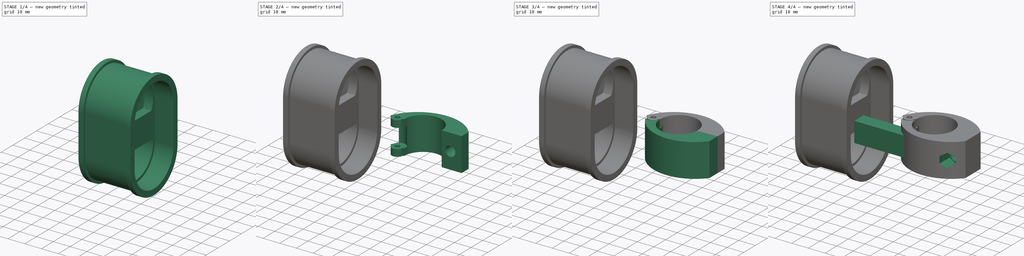
[diagram: build sequence overview — one tinted view per stage of 4, left to right]
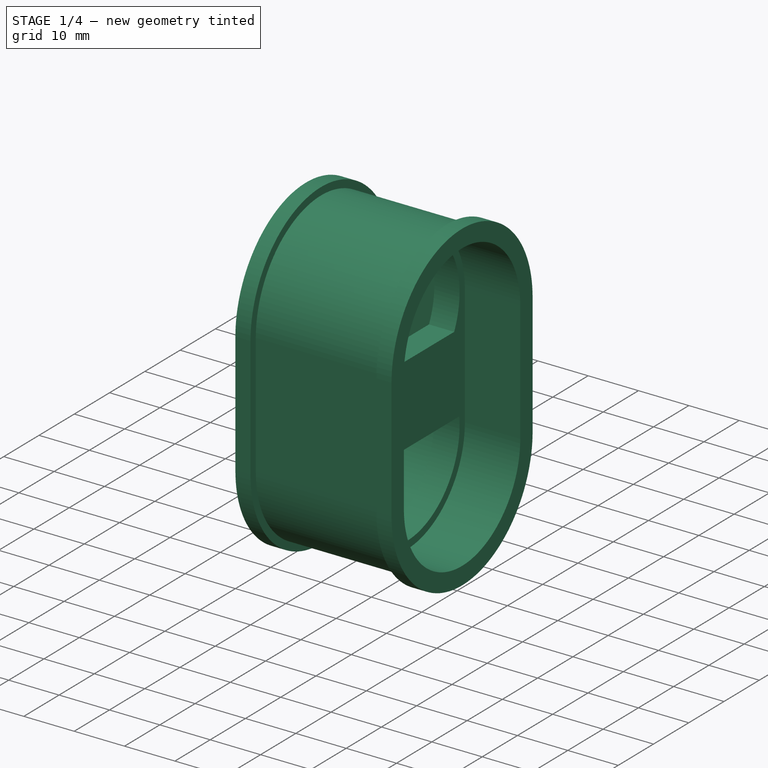
[diagram: stage 1 of 4 — iso view after this stage's code; geometry added in this stage tinted green]
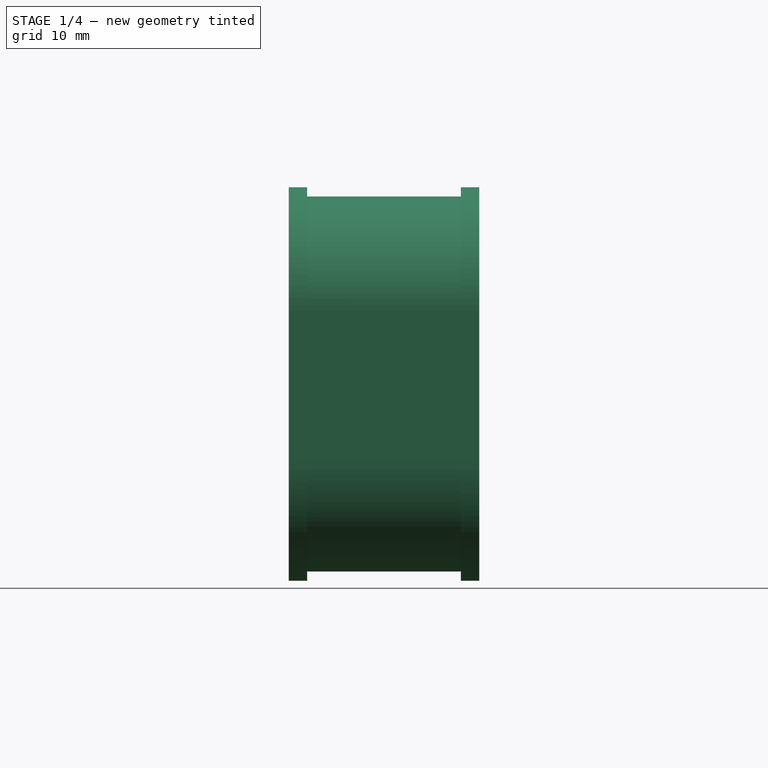
[diagram: stage 1 of 4 — front view after this stage's code; geometry added in this stage tinted green]
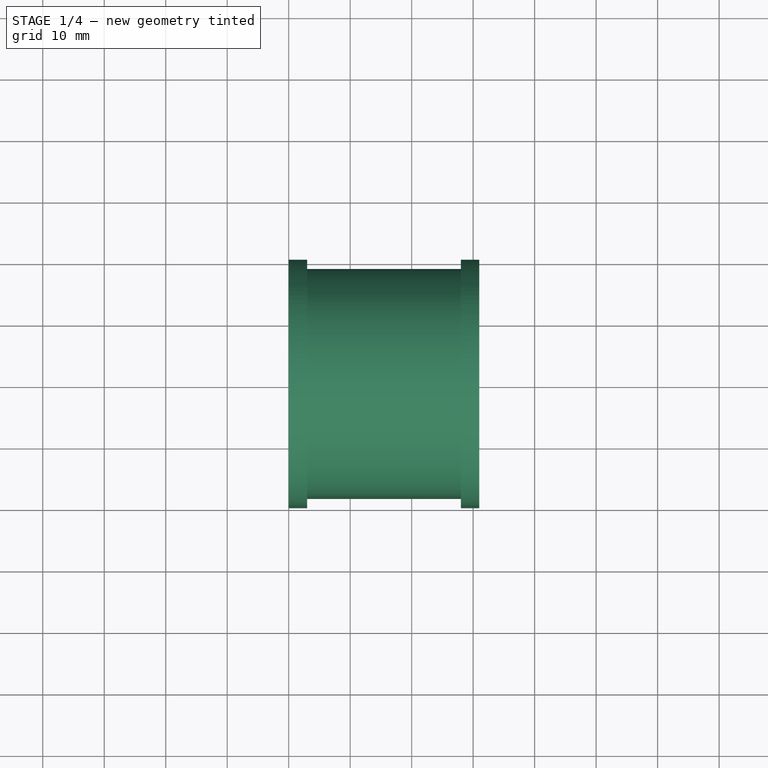
[diagram: stage 1 of 4 — top view after this stage's code; geometry added in this stage tinted green]
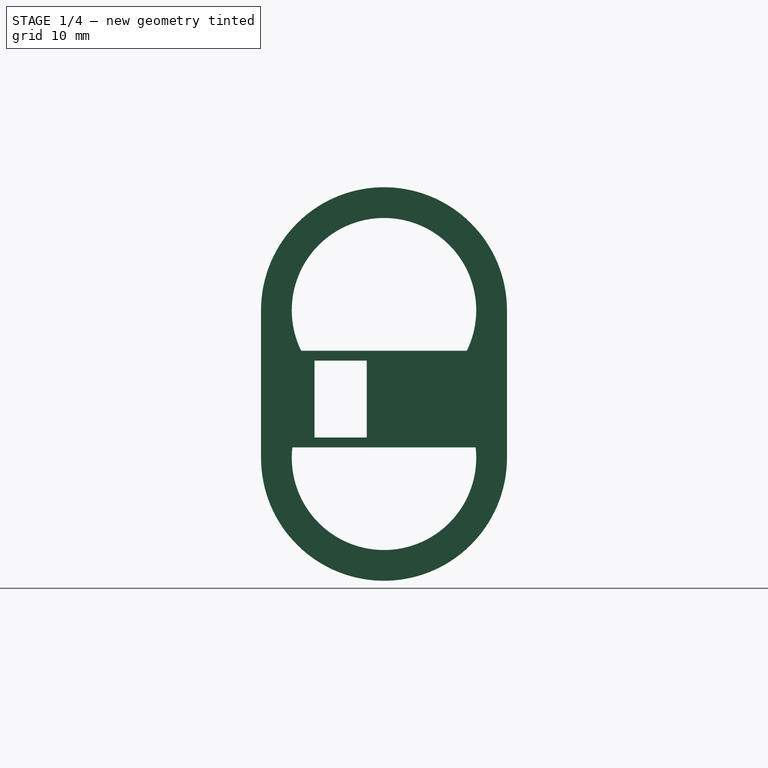
[diagram: stage 1 of 4 — right view after this stage's code; geometry added in this stage tinted green]
FCSTD DOCUMENT  (FreeCAD 0.21Rpre_29277.fc34 (Git))
Label: watch-mount-v2
License: All rights reserved
LicenseURL: http://en.wikipedia.org/wiki/All_rights_reserved
objects: Sketcher::SketchObject×14, PartDesign::Pad×7, PartDesign::Pocket×7, PartDesign::Body×3
note: 45 computed .brp shape members not serialized (recipe doc carries the construction recipe); baked Part::Feature solids carry a one-line shape summary decoded from their .brp

FEATURE [PartDesign::Body] Body001  label="felso-foglalat"
  Group = -> [Sketch006,Pad002,Sketch007,Pocket004,Sketch008,Pocket005,Sketch009,Pocket006]
  Origin = -> Origin001
  Tip = -> Pocket006
FEATURE [Sketcher::SketchObject] Sketch010
  AttachmentOffset = pos=(0,0,-70) rot=(0,0,1;0rad)
  FullyConstrained = true
  MapMode = 5
  Placement = pos=(-70,1.55e-14,-1.55e-14) rot=(0.57735,0.57735,0.57735;2.0944rad)
  Support = -> [YZ_Plane002]
  sketch-geometry (8):
    g0: ArcOfCircle CenterX=0 CenterY=-10 CenterZ=0 NormalX=0 NormalY=0 NormalZ=1 AngleXU=0 Radius=20 StartAngle=3.14159 EndAngle=6.28319
    g1: ArcOfCircle CenterX=0 CenterY=14 CenterZ=0 NormalX=0 NormalY=0 NormalZ=1 AngleXU=0 Radius=20 StartAngle=0 EndAngle=3.14159
    g2: LineSegment StartX=20 StartY=-10 StartZ=0 EndX=20 EndY=14 EndZ=0
    g3: LineSegment StartX=-20 StartY=14 StartZ=0 EndX=-20 EndY=-10 EndZ=0
    g4: ArcOfCircle CenterX=0 CenterY=-10 CenterZ=0 NormalX=0 NormalY=0 NormalZ=1 AngleXU=0 Radius=16.5 StartAngle=3.14159 EndAngle=6.28319
    g5: ArcOfCircle CenterX=0 CenterY=14 CenterZ=0 NormalX=0 NormalY=0 NormalZ=1 AngleXU=0 Radius=16.5 StartAngle=3.875e-13 EndAngle=3.14159
    g6: LineSegment StartX=16.5 StartY=-10 StartZ=0 EndX=16.5 EndY=14 EndZ=0
    g7: LineSegment StartX=-16.5 StartY=14 StartZ=0 EndX=-16.5 EndY=-10 EndZ=0
  constraints (18):
    c: Tangent(g0,g2) = -1.5708
    c: Tangent(g2,g1) = -1.5708
    c: Tangent(g1,g3) = -1.5708
    c: Tangent(g3,g0) = -1.5708
    c: Equal(g0,g1)
    c: Radius(g1) = 20
    c: DistanceX(g1) = 0
    c: Tangent(g4,g6) = -1.5708
    c: Tangent(g6,g5) = -1.5708
    c: Tangent(g5,g7) = -1.5708
    c: Tangent(g7,g4) = -1.5708
    c: Equal(g4,g5)
    c: Coincident(g4,g0)
    c: Coincident(g5,g1)
    c: Radius(g5) = 16.5
    c: DistanceY(g1) = 14
    c: DistanceX(g0) = 0
    c: DistanceY(g0) = -10
FEATURE [PartDesign::Pad] Pad003  label="bal-keret"
  Direction = (1,-2e-16,3e-16)
  Length = 3
  Length2 = 10
  Placement = pos=(0,0,0) rot=(0.57735,0.57735,0.57735;2.0944rad)
  Profile = -> Sketch010
  ReferenceAxis = -> Sketch010 [N_Axis]
  Type = 0
FEATURE [Sketcher::SketchObject] Sketch011
  AttachmentOffset = pos=(0,0,-67) rot=(0,0,1;0rad)
  FullyConstrained = true
  MapMode = 5
  Placement = pos=(-67,1.49e-14,-1.49e-14) rot=(0.57735,0.57735,0.57735;2.0944rad)
  Support = -> [YZ_Plane002]
  sketch-geometry (8):
    g0: ArcOfCircle CenterX=0 CenterY=-10 CenterZ=0 NormalX=0 NormalY=0 NormalZ=1 AngleXU=0 Radius=16.5 StartAngle=3.14159 EndAngle=6.28319
    g1: ArcOfCircle CenterX=0 CenterY=14 CenterZ=0 NormalX=0 NormalY=0 NormalZ=1 AngleXU=0 Radius=16.5 StartAngle=-6.2e-15 EndAngle=3.14159
    g2: LineSegment StartX=16.5 StartY=-10 StartZ=0 EndX=16.5 EndY=14 EndZ=0
    g3: LineSegment StartX=-16.5 StartY=14 StartZ=0 EndX=-16.5 EndY=-10 EndZ=0
    g4: ArcOfCircle CenterX=0 CenterY=-10 CenterZ=0 NormalX=0 NormalY=0 NormalZ=1 AngleXU=0 Radius=18.5 StartAngle=3.14159 EndAngle=6.28319
    g5: ArcOfCircle CenterX=0 CenterY=14 CenterZ=0 NormalX=0 NormalY=0 NormalZ=1 AngleXU=0 Radius=18.5 StartAngle=0 EndAngle=3.14159
    g6: LineSegment StartX=18.5 StartY=-10 StartZ=0 EndX=18.5 EndY=14 EndZ=0
    g7: LineSegment StartX=-18.5 StartY=14 StartZ=0 EndX=-18.5 EndY=-10 EndZ=0
  constraints (18):
    c: Tangent(g0,g2) = -1.5708
    c: Tangent(g2,g1) = -1.5708
    c: Tangent(g1,g3) = -1.5708
    c: Tangent(g3,g0) = -1.5708
    c: Equal(g0,g1)
    c: Radius(g1) = 16.5
    c: Tangent(g4,g6) = -1.5708
    c: Tangent(g6,g5) = -1.5708
    c: Tangent(g5,g7) = -1.5708
    c: Tangent(g7,g4) = -1.5708
    c: Equal(g4,g5)
    c: Coincident(g4,g0)
    c: Coincident(g5,g1)
    c: Radius(g5) = 18.5
    c: DistanceX(g1) = 0
    c: DistanceY(g1) = 14
    c: DistanceX(g0) = 0
    c: DistanceY(g0) = -10
FEATURE [PartDesign::Pad] Pad004  label="tarto-test"
  BaseFeature = -> Pad003
  Direction = (1,-2e-16,3e-16)
  Length = 25
  Length2 = 10
  Placement = pos=(0,0,0) rot=(0.57735,0.57735,0.57735;2.0944rad)
  Profile = -> Sketch011
  ReferenceAxis = -> Sketch011 [N_Axis]
  Type = 0
FEATURE [Sketcher::SketchObject] Sketch012
  AttachmentOffset = pos=(0,0,-42) rot=(0,0,1;0rad)
  FullyConstrained = true
  MapMode = 5
  Placement = pos=(-42,9.3e-15,-9.3e-15) rot=(0.57735,0.57735,0.57735;2.0944rad)
  Support = -> [YZ_Plane002]
  sketch-geometry (8):
    g0: ArcOfCircle CenterX=0 CenterY=-10 CenterZ=0 NormalX=0 NormalY=0 NormalZ=1 AngleXU=0 Radius=20 StartAngle=3.14159 EndAngle=6.28319
    g1: ArcOfCircle CenterX=0 CenterY=14 CenterZ=0 NormalX=0 NormalY=0 NormalZ=1 AngleXU=0 Radius=20 StartAngle=0 EndAngle=3.14159
    g2: LineSegment StartX=20 StartY=-10 StartZ=0 EndX=20 EndY=14 EndZ=0
    g3: LineSegment StartX=-20 StartY=14 StartZ=0 EndX=-20 EndY=-10 EndZ=0
    g4: ArcOfCircle CenterX=0 CenterY=-10 CenterZ=0 NormalX=0 NormalY=0 NormalZ=1 AngleXU=0 Radius=16.5 StartAngle=3.14159 EndAngle=6.28319
    g5: ArcOfCircle CenterX=0 CenterY=14 CenterZ=0 NormalX=0 NormalY=0 NormalZ=1 AngleXU=0 Radius=16.5 StartAngle=1e-16 EndAngle=3.14159
    g6: LineSegment StartX=16.5 StartY=-10 StartZ=0 EndX=16.5 EndY=14 EndZ=0
    g7: LineSegment StartX=-16.5 StartY=14 StartZ=0 EndX=-16.5 EndY=-10 EndZ=0
  constraints (18):
    c: Tangent(g0,g2) = -1.5708
    c: Tangent(g2,g1) = -1.5708
    c: Tangent(g1,g3) = -1.5708
    c: Tangent(g3,g0) = -1.5708
    c: Equal(g0,g1)
    c: Radius(g1) = 20
    c: DistanceX(g1) = 0
    c: Tangent(g4,g6) = -1.5708
    c: Tangent(g6,g5) = -1.5708
    c: Tangent(g5,g7) = -1.5708
    c: Tangent(g7,g4) = -1.5708
    c: Equal(g4,g5)
    c: Coincident(g4,g0)
    c: Coincident(g5,g1)
    c: Radius(g5) = 16.5
    c: DistanceY(g1) = 14
    c: DistanceX(g0) = 0
    c: DistanceY(g0) = -10
FEATURE [PartDesign::Pad] Pad005  label="jobb-keret"
  BaseFeature = -> Pad004
  Direction = (1,-2e-16,3e-16)
  Length = 3
  Length2 = 10
  Placement = pos=(0,0,0) rot=(0.57735,0.57735,0.57735;2.0944rad)
  Profile = -> Sketch012
  ReferenceAxis = -> Sketch012 [N_Axis]
  Type = 0
FEATURE [Sketcher::SketchObject] Sketch013
  AttachmentOffset = pos=(0,0,-50) rot=(0,0,1;0rad)
  FullyConstrained = true
  MapMode = 5
  Placement = pos=(-50,1.11e-14,-1.11e-14) rot=(0.57735,0.57735,0.57735;2.0944rad)
  Support = -> [YZ_Plane002]
  sketch-geometry (12):
    g0: ArcOfCircle CenterX=0 CenterY=-10 CenterZ=0 NormalX=0 NormalY=0 NormalZ=1 AngleXU=0 Radius=16.5 StartAngle=3.14159 EndAngle=6.28319
    g1: ArcOfCircle CenterX=0 CenterY=14 CenterZ=0 NormalX=0 NormalY=0 NormalZ=1 AngleXU=0 Radius=16.5 StartAngle=-6.2e-15 EndAngle=3.14159
    g2: LineSegment StartX=16.5 StartY=-10 StartZ=0 EndX=16.5 EndY=14 EndZ=0
    g3: LineSegment StartX=-16.5 StartY=14 StartZ=0 EndX=-16.5 EndY=-10 EndZ=0
    g4: LineSegment StartX=-11.3 StartY=5.8 StartZ=0 EndX=-2.8 EndY=5.8 EndZ=0
    g5: LineSegment StartX=-2.8 StartY=5.8 StartZ=0 EndX=-2.8 EndY=-6.7 EndZ=0
    g6: LineSegment StartX=-2.8 StartY=-6.7 StartZ=0 EndX=-11.3 EndY=-6.7 EndZ=0
    g7: LineSegment StartX=-11.3 StartY=-6.7 StartZ=0 EndX=-11.3 EndY=5.8 EndZ=0
    g8: LineSegment StartX=-14.9045 StartY=-8.31046 StartZ=0 EndX=14.9045 EndY=-8.31046 EndZ=0
    g9: ArcOfCircle CenterX=0 CenterY=-10 CenterZ=0 NormalX=0 NormalY=0 NormalZ=1 AngleXU=0 Radius=15 StartAngle=3.02872 EndAngle=6.39606
    g10: ArcOfCircle CenterX=0 CenterY=14 CenterZ=0 NormalX=0 NormalY=0 NormalZ=1 AngleXU=0 Radius=15 StartAngle=5.82879 EndAngle=9.87917
    g11: LineSegment StartX=-13.4779 StartY=7.41623 StartZ=0 EndX=13.4779 EndY=7.41623 EndZ=0
  constraints (34):
    c: Tangent(g0,g2) = -1.5708
    c: Tangent(g2,g1) = -1.5708
    c: Tangent(g1,g3) = -1.5708
    c: Tangent(g3,g0) = -1.5708
    c: Equal(g0,g1)
    c: Radius(g1) = 16.5
    c: DistanceX(g0) = 0
    c: DistanceY(g0) = -10
    c: DistanceX(g1) = 0
    c: DistanceY(g1) = 14
    c: Coincident(g4,g5)
    c: Coincident(g5,g6)
    c: Coincident(g6,g7)
    c: Coincident(g7,g4)
    c: Horizontal(g4)
    c: Horizontal(g6)
    c: Vertical(g5)
    c: Vertical(g7)
    c: DistanceX(g4) = -2.8
    c: DistanceY(g4) = 5.8
    c: DistanceX(g4,g4) = 8.5
    c: DistanceY(g7,g7) = 12.5
    c: Horizontal(g8)
    c: Coincident(g9,g8)
    c: Coincident(g9,g8)
    c: DistanceY(g8) = -8.31047
    c: Coincident(g0,g9)
    c: Coincident(g10,g1)
    c: Radius(g10) = 15
    c: Horizontal(g11)
    c: Coincident(g10,g11)
    c: Coincident(g10,g11)
    c: Radius(g9) = 15
    c: DistanceX(g10) = -13.4779
FEATURE [PartDesign::Pad] Pad006  label="merevito"
  BaseFeature = -> Pad005
  Direction = (1,-2e-16,3e-16)
  Length = 5
  Length2 = 10
  Placement = pos=(0,0,0) rot=(0.57735,0.57735,0.57735;2.0944rad)
  Profile = -> Sketch013
  ReferenceAxis = -> Sketch013 [N_Axis]
  Reversed = true
  Type = 0
FEATURE [PartDesign::Body] Body002  label="ora-tarto"
  Group = -> [Sketch010,Pad003,Sketch011,Pad004,Sketch012,Pad005,Sketch013,Pad006]
  Origin = -> Origin002
  Placement = pos=(-10,0,0) rot=(0,0,1;0rad)
  Tip = -> Pad006
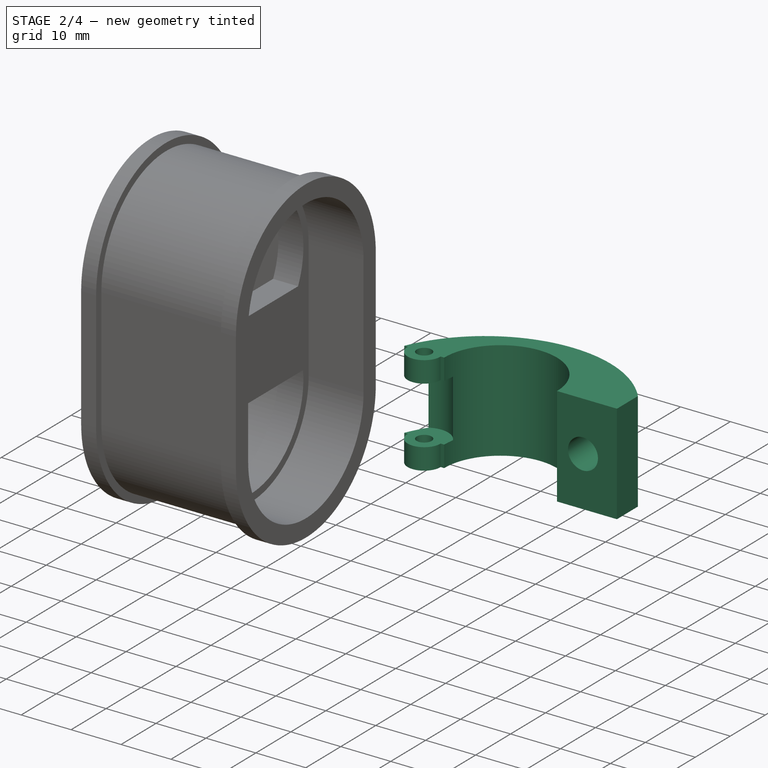
[diagram: stage 2 of 4 — iso view after this stage's code; geometry added in this stage tinted green]
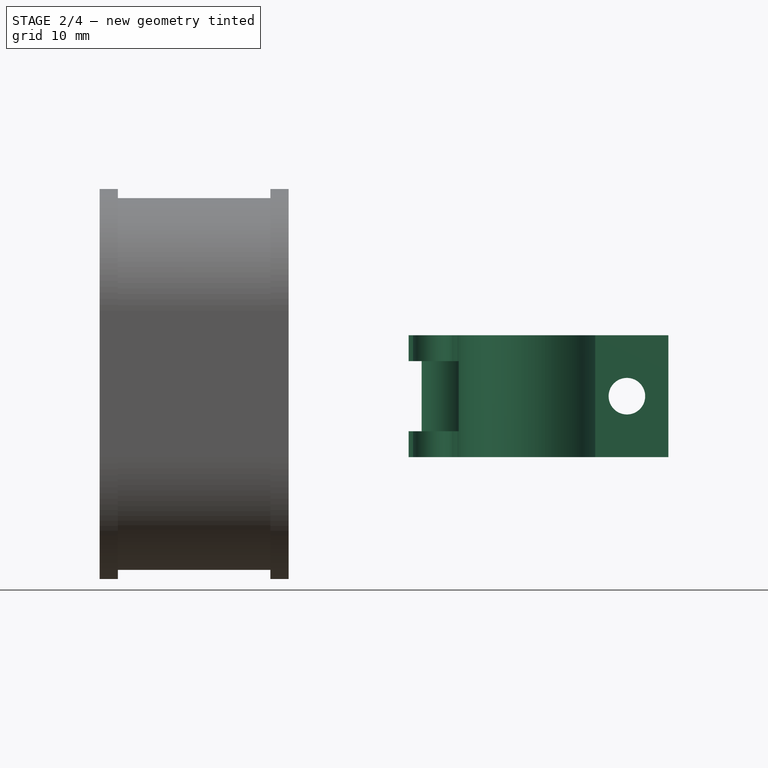
[diagram: stage 2 of 4 — front view after this stage's code; geometry added in this stage tinted green]
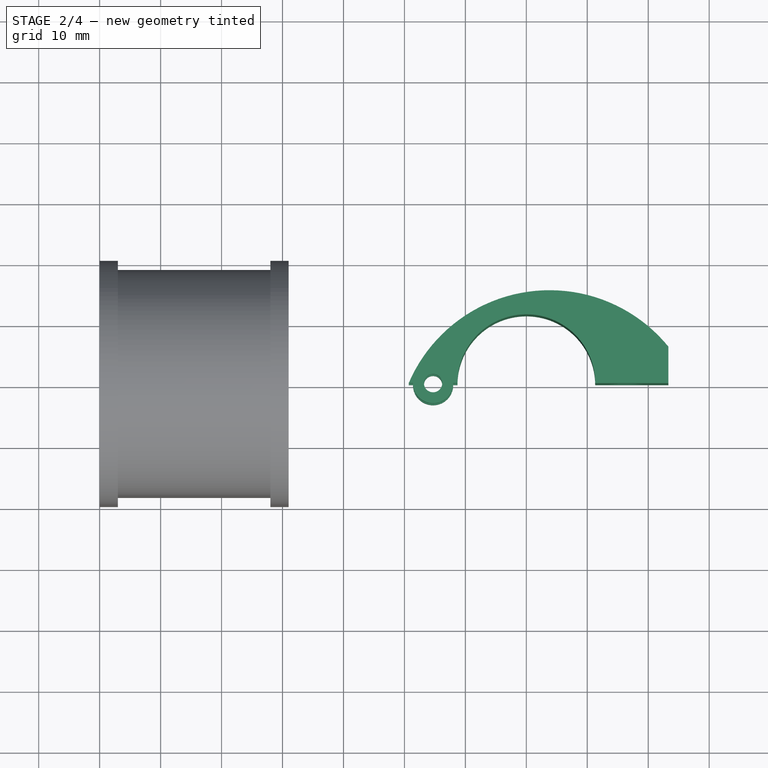
[diagram: stage 2 of 4 — top view after this stage's code; geometry added in this stage tinted green]
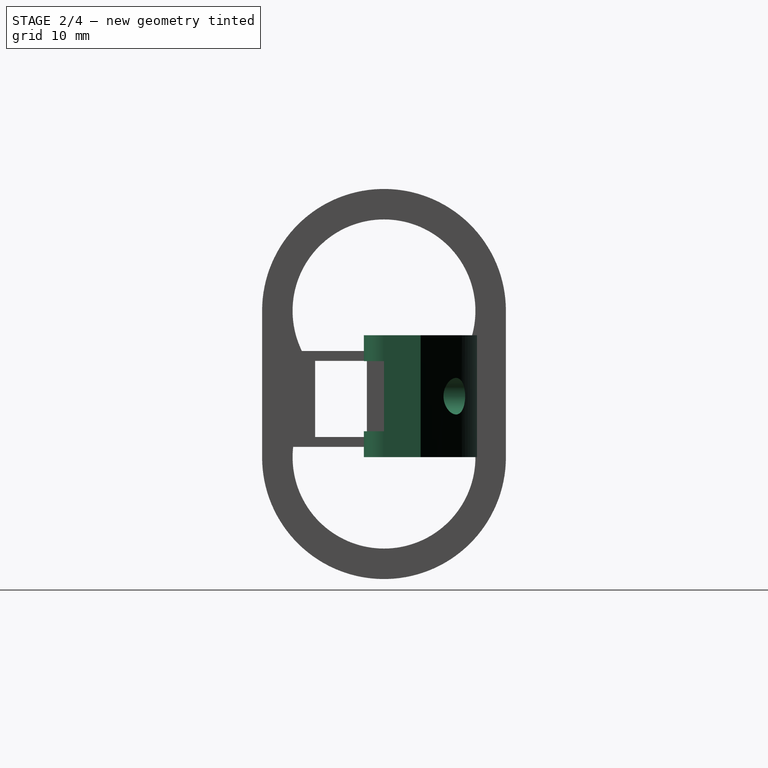
[diagram: stage 2 of 4 — right view after this stage's code; geometry added in this stage tinted green]
FEATURE [PartDesign::Body] Body  label="also-foglalat"
  Group = -> [Sketch,Pad,Sketch001,Pocket,Sketch002,Pocket001,Sketch003,Pocket002,Sketch004,Pocket003,Sketch005,Pad001]
  Origin = -> Origin
  Tip = -> Pad001
FEATURE [Sketcher::SketchObject] Sketch006
  FullyConstrained = true
  MapMode = 5
  Support = -> [XY_Plane001]
  sketch-geometry (8):
    g0: ArcOfCircle CenterX=0 CenterY=0 CenterZ=0 NormalX=0 NormalY=0 NormalZ=1 AngleXU=0 Radius=11.3 StartAngle=0 EndAngle=3.14159
    g1: LineSegment StartX=-11.3 StartY=1.4e-15 StartZ=0 EndX=-12 EndY=-8e-16 EndZ=0
    g2: ArcOfCircle CenterX=-15.3 CenterY=0 CenterZ=0 NormalX=0 NormalY=0 NormalZ=1 AngleXU=0 Radius=3.3 StartAngle=3.14159 EndAngle=6.28319
    g3: LineSegment StartX=-18.6 StartY=4e-16 StartZ=0 EndX=-19.3 EndY=1.24e-14 EndZ=0
    g4: Circle CenterX=-15.3 CenterY=0 CenterZ=0 NormalX=0 NormalY=0 NormalZ=1 AngleXU=0 Radius=1.5
    g5: LineSegment StartX=11.3 StartY=0 StartZ=0 EndX=23.3 EndY=0 EndZ=0
    g6: LineSegment StartX=23.3 StartY=0 StartZ=0 EndX=23.3 EndY=6 EndZ=0
    g7: ArcOfCircle CenterX=3.81551 CenterY=-9.89015 CenterZ=0 NormalX=0 NormalY=0 NormalZ=1 AngleXU=0 Radius=25.1424 StartAngle=0.684138 EndAngle=2.7373
  constraints (25):
    c: Coincident(g0,g-1)
    c: PointOnObject(g0,g-1)
    c: PointOnObject(g0,g-1)
    c: Radius(g0) = 11.3
    c: Coincident(g1,g0)
    c: PointOnObject(g1,g-1)
    c: DistanceX(g1,g1) = 0.7
    c: PointOnObject(g2,g-1)
    c: Coincident(g2,g1)
    c: PointOnObject(g2,g-1)
    c: Radius(g2) = 3.3
    c: Coincident(g3,g2)
    c: PointOnObject(g3,g-1)
    c: DistanceX(g3,g3) = 0.7
    c: Coincident(g4,g2)
    c: Radius(g4) = 1.5
    c: Coincident(g5,g6)
    c: Horizontal(g5)
    c: Vertical(g6)
    c: Coincident(g5,g0)
    c: DistanceX(g5,g5) = 12
    c: Coincident(g7,g3)
    c: Coincident(g7,g6)
    c: DistanceY(g6,g6) = 6
    c: DistanceX(g7) = 3.81551
FEATURE [PartDesign::Pad] Pad002  label="fels-foglalat-test"
  Direction = (0,0,1)
  Length = 20
  Length2 = 10
  Midplane = true
  Profile = -> Sketch006
  ReferenceAxis = -> Sketch006 [N_Axis]
  Type = 0
FEATURE [Sketcher::SketchObject] Sketch007
  FullyConstrained = true
  MapMode = 5
  Support = -> [XY_Plane001]
  sketch-geometry (1):
    g0: Circle CenterX=-15 CenterY=0 CenterZ=0 NormalX=0 NormalY=0 NormalZ=1 AngleXU=0 Radius=4.5
  constraints (3):
    c: Radius(g0) = 4.5
    c: DistanceX(g0) = -15
    c: DistanceY(g0) = 0
FEATURE [PartDesign::Pocket] Pocket004  label="zsaner-kivagas"
  BaseFeature = -> Pad002
  Direction = (0,0,-1)
  Length = 11.5
  Length2 = 5
  Midplane = true
  Profile = -> Sketch007
  ReferenceAxis = -> Sketch007 [N_Axis]
  Type = 0
FEATURE [Sketcher::SketchObject] Sketch008
  FullyConstrained = true
  MapMode = 5
  Placement = pos=(0,0,0) rot=(1,0,0;1.5708rad)
  Support = -> [XZ_Plane001]
  sketch-geometry (1):
    g0: Circle CenterX=16.5 CenterY=0 CenterZ=0 NormalX=0 NormalY=0 NormalZ=1 AngleXU=0 Radius=3
  constraints (3):
    c: PointOnObject(g0,g-1)
    c: DistanceX(g0) = 16.5
    c: Radius(g0) = 3
FEATURE [PartDesign::Pocket] Pocket005  label="felso-rogz-csav-furat"
  BaseFeature = -> Pocket004
  Direction = (0,1,2e-16)
  Length = 15
  Length2 = 5
  Profile = -> Sketch008
  ReferenceAxis = -> Sketch008 [N_Axis]
  Type = 0
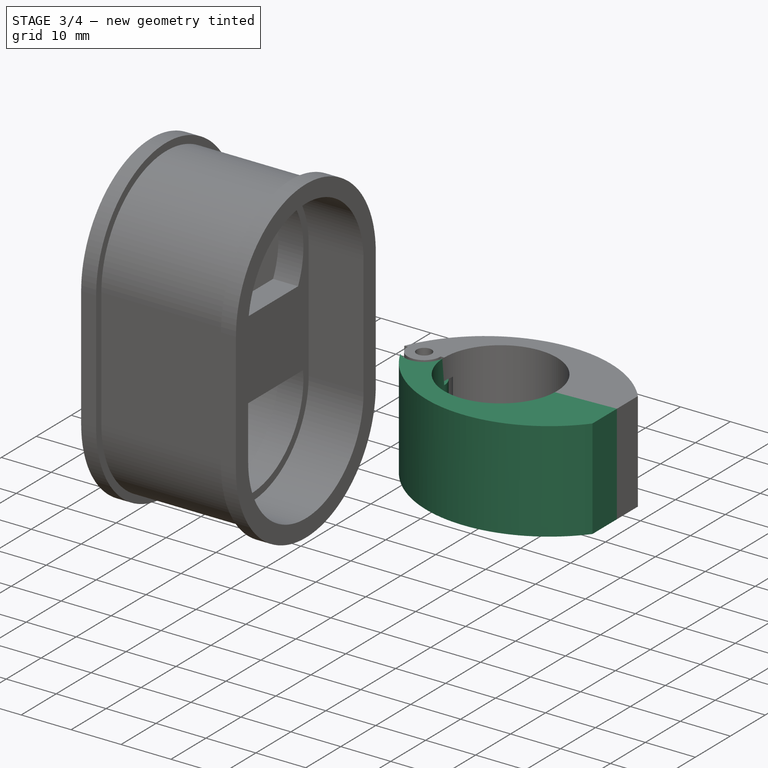
[diagram: stage 3 of 4 — iso view after this stage's code; geometry added in this stage tinted green]
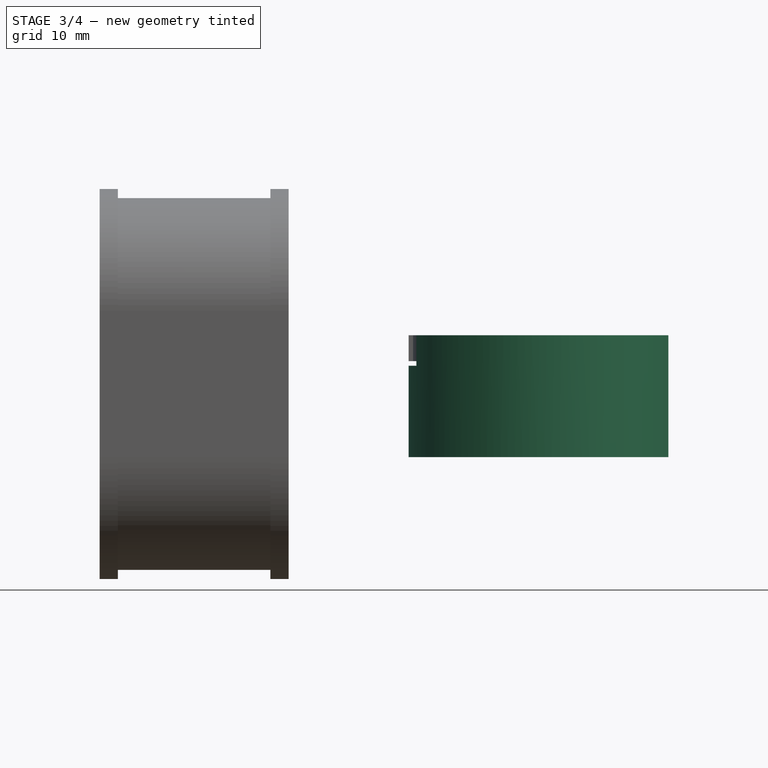
[diagram: stage 3 of 4 — front view after this stage's code; geometry added in this stage tinted green]
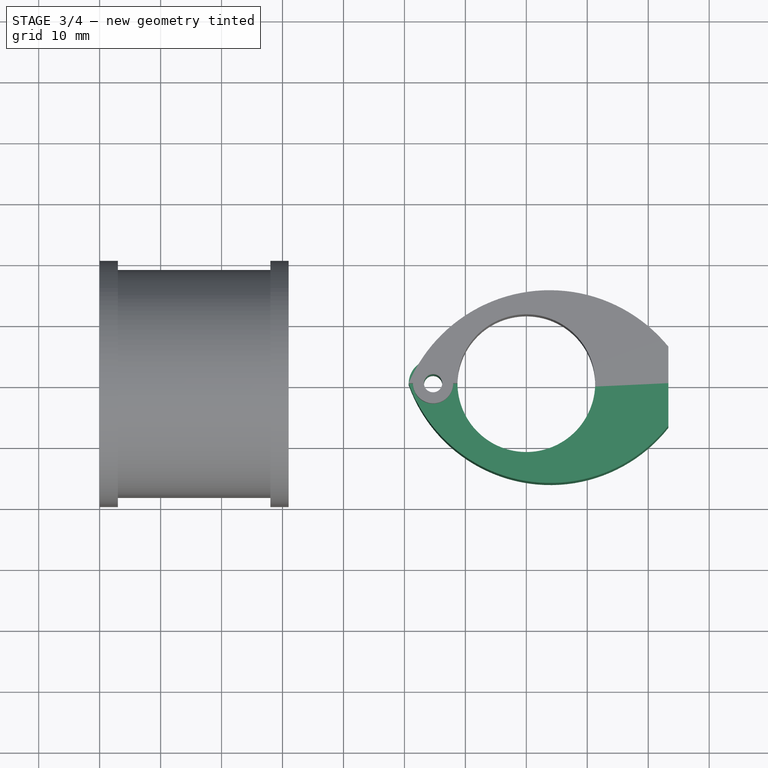
[diagram: stage 3 of 4 — top view after this stage's code; geometry added in this stage tinted green]
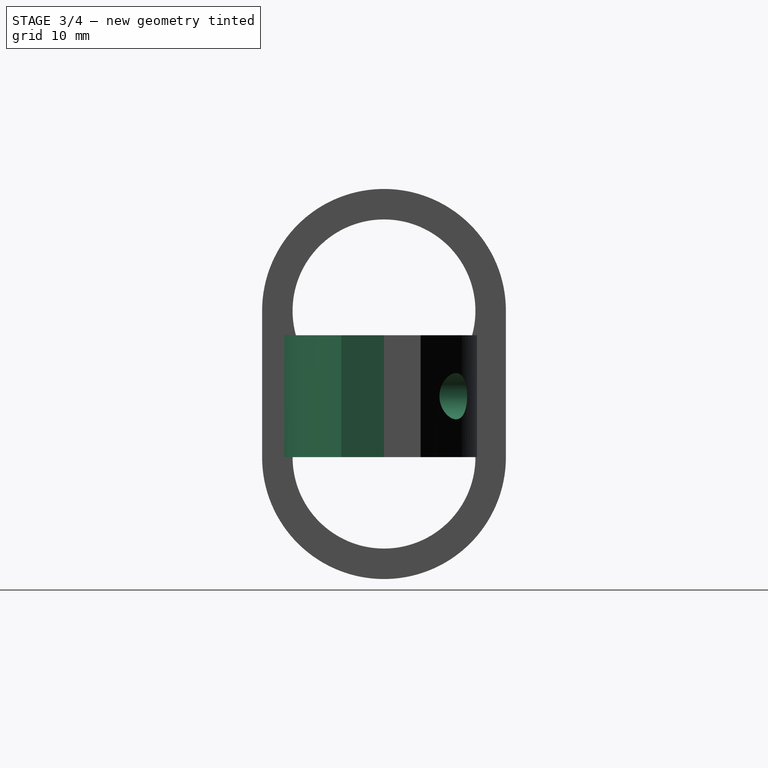
[diagram: stage 3 of 4 — right view after this stage's code; geometry added in this stage tinted green]
FEATURE [Sketcher::SketchObject] Sketch
  FullyConstrained = true
  MapMode = 5
  Support = -> [XY_Plane]
  sketch-geometry (6):
    g0: ArcOfCircle CenterX=0 CenterY=0 CenterZ=0 NormalX=0 NormalY=0 NormalZ=1 AngleXU=0 Radius=11.3 StartAngle=3.14159 EndAngle=6.28319
    g1: ArcOfCircle CenterX=-15.3 CenterY=0 CenterZ=0 NormalX=0 NormalY=0 NormalZ=1 AngleXU=0 Radius=4 StartAngle=0 EndAngle=3.14159
    g2: Circle CenterX=-15.3 CenterY=0 CenterZ=0 NormalX=0 NormalY=0 NormalZ=1 AngleXU=0 Radius=1.5
    g3: LineSegment StartX=11.3 StartY=-2.8e-15 StartZ=0 EndX=23.3 EndY=-2.8e-15 EndZ=0
    g4: LineSegment StartX=23.3 StartY=-2.8e-15 StartZ=0 EndX=23.3 EndY=-7 EndZ=0
    g5: ArcOfCircle CenterX=3.9388 CenterY=8.29896 CenterZ=0 NormalX=0 NormalY=0 NormalZ=1 AngleXU=0 Radius=24.6762 StartAngle=3.48459 EndAngle=5.61446
  constraints (19):
    c: Coincident(g0,g-1)
    c: PointOnObject(g0,g-1)
    c: PointOnObject(g0,g-1)
    c: Radius(g0) = 11.3
    c: PointOnObject(g1,g-1)
    c: Coincident(g1,g0)
    c: PointOnObject(g1,g-1)
    c: Radius(g1) = 4
    c: Coincident(g2,g1)
    c: Radius(g2) = 1.5
    c: Coincident(g3,g4)
    c: Horizontal(g3)
    c: Vertical(g4)
    c: Coincident(g3,g0)
    c: DistanceX(g3,g3) = 12
    c: DistanceY(g4) = -7
    c: Coincident(g5,g4)
    c: Coincident(g5,g1)
    c: DistanceX(g5) = 3.9388
FEATURE [PartDesign::Pad] Pad  label="foglalat-test"
  Direction = (0,0,1)
  Length = 20
  Length2 = 10
  Midplane = true
  Profile = -> Sketch
  ReferenceAxis = -> Sketch [N_Axis]
  Type = 0
FEATURE [Sketcher::SketchObject] Sketch001
  AttachmentOffset = pos=(0,0,10) rot=(0,0,1;0rad)
  FullyConstrained = true
  MapMode = 5
  Placement = pos=(0,0,10) rot=(0,0,1;0rad)
  Support = -> [XY_Plane]
  sketch-geometry (1):
    g0: Circle CenterX=-15.3 CenterY=0 CenterZ=0 NormalX=0 NormalY=0 NormalZ=1 AngleXU=0 Radius=4
  constraints (3):
    c: PointOnObject(g0,g-1)
    c: DistanceX(g0) = -15.3
    c: Radius(g0) = 4
FEATURE [Sketcher::SketchObject] Sketch002
  AttachmentOffset = pos=(0,0,-10) rot=(0,0,1;0rad)
  FullyConstrained = true
  MapMode = 5
  Placement = pos=(0,0,-10) rot=(0,0,1;0rad)
  Support = -> [XY_Plane]
  sketch-geometry (1):
    g0: Circle CenterX=-15.3 CenterY=0 CenterZ=0 NormalX=0 NormalY=0 NormalZ=1 AngleXU=0 Radius=4
  constraints (3):
    c: PointOnObject(g0,g-1)
    c: DistanceX(g0) = -15.3
    c: Radius(g0) = 4
FEATURE [PartDesign::Pocket] Pocket  label="zsaner-kiv-1"
  BaseFeature = -> Pad
  Direction = (0,0,-1)
  Length = 5
  Length2 = 5
  Profile = -> Sketch001
  ReferenceAxis = -> Sketch001 [N_Axis]
  Type = 0
FEATURE [Sketcher::SketchObject] Sketch009
  AttachmentOffset = pos=(0,0,-5) rot=(0,0,1;0rad)
  FullyConstrained = true
  MapMode = 5
  Placement = pos=(0,5,1.1e-15) rot=(1,0,0;1.5708rad)
  Support = -> [XZ_Plane001]
  sketch-geometry (1):
    g0: Circle CenterX=16.5 CenterY=0 CenterZ=0 NormalX=0 NormalY=0 NormalZ=1 AngleXU=0 Radius=3.8
  constraints (3):
    c: PointOnObject(g0,g-1)
    c: DistanceX(g0) = 16.5
    c: Radius(g0) = 3.8
FEATURE [PartDesign::Pocket] Pocket006  label="fels-rozg-csav-fej"
  BaseFeature = -> Pocket005
  Direction = (0,1,2e-16)
  Length = 20
  Length2 = 5
  Profile = -> Sketch009
  ReferenceAxis = -> Sketch009 [N_Axis]
  Type = 0
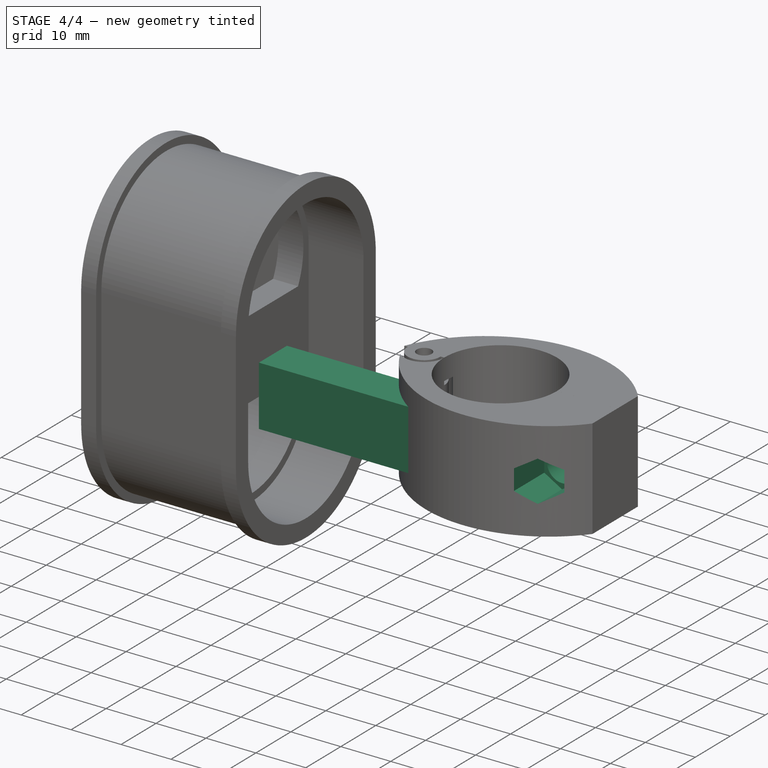
[diagram: stage 4 of 4 — iso view after this stage's code; geometry added in this stage tinted green]
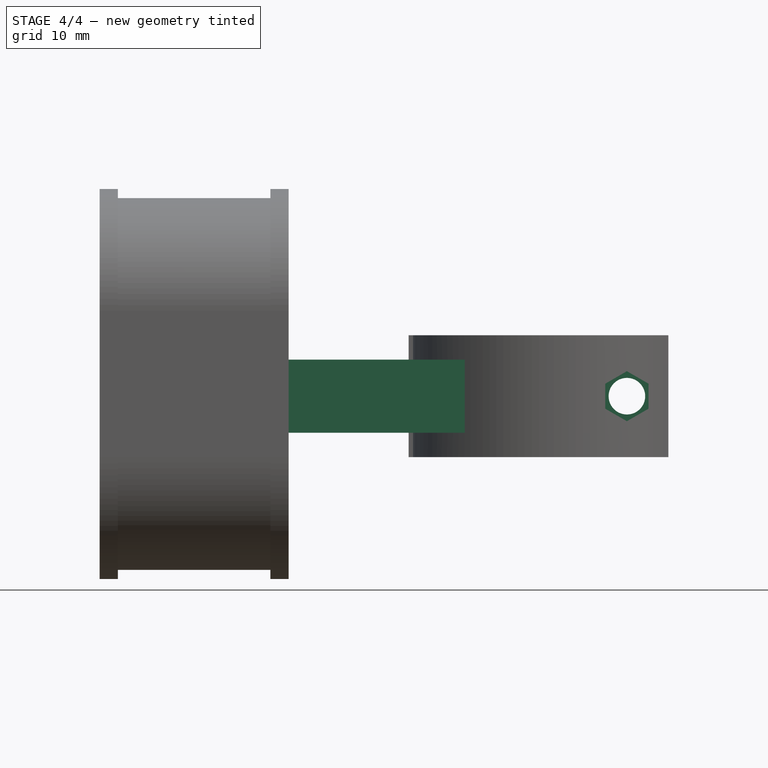
[diagram: stage 4 of 4 — front view after this stage's code; geometry added in this stage tinted green]
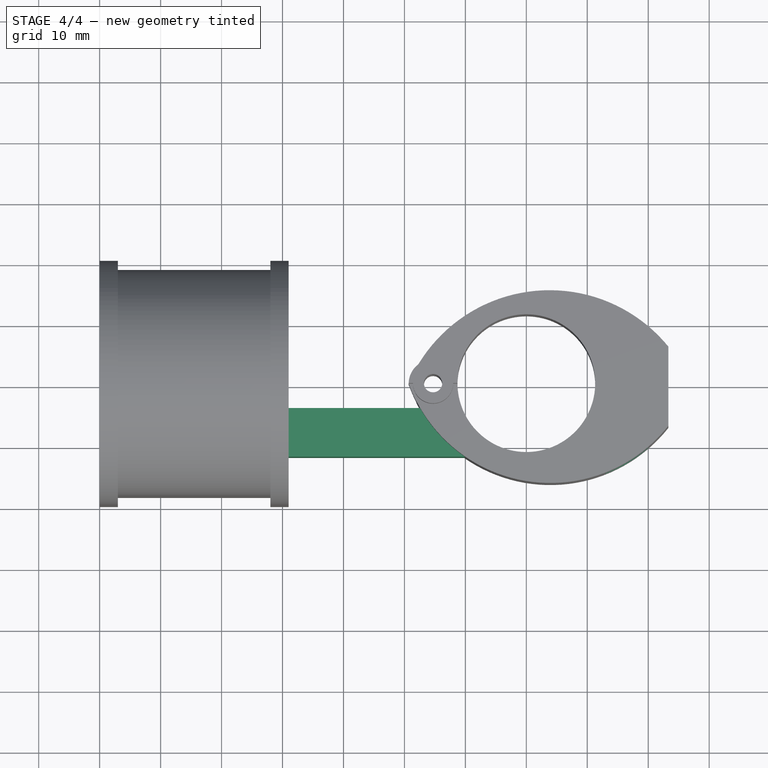
[diagram: stage 4 of 4 — top view after this stage's code; geometry added in this stage tinted green]
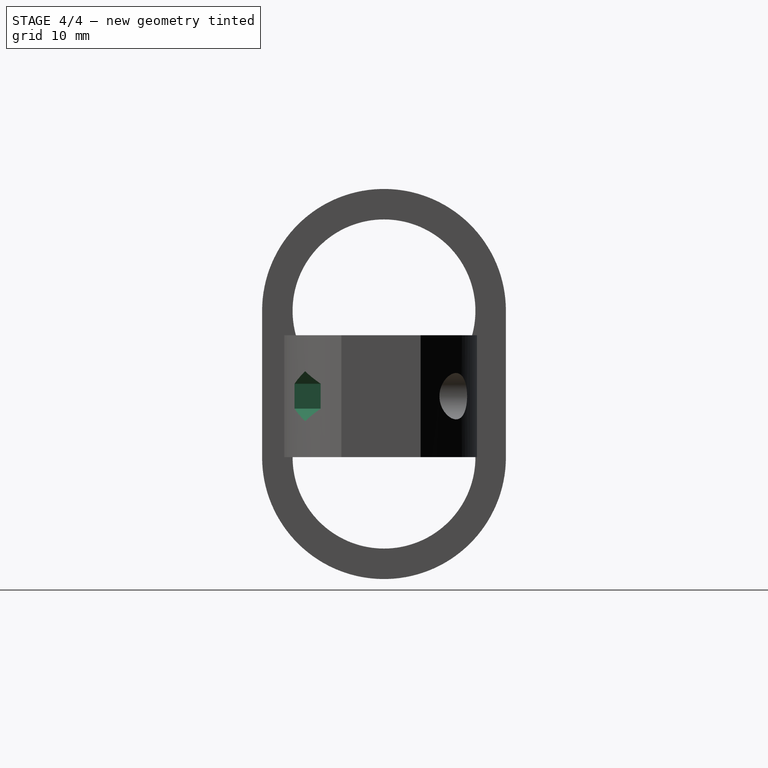
[diagram: stage 4 of 4 — right view after this stage's code; geometry added in this stage tinted green]
FEATURE [PartDesign::Pocket] Pocket001  label="zsaner-kiv-2"
  BaseFeature = -> Pocket
  Direction = (0,0,-1)
  Length = 5
  Length2 = 5
  Profile = -> Sketch002
  ReferenceAxis = -> Sketch002 [N_Axis]
  Reversed = true
  Type = 0
FEATURE [Sketcher::SketchObject] Sketch003
  AttachmentOffset = pos=(0,0,6) rot=(0,0,1;0rad)
  FullyConstrained = true
  MapMode = 5
  Placement = pos=(0,-6,-1.3e-15) rot=(1,0,0;1.5708rad)
  Support = -> [XZ_Plane]
  sketch-geometry (7):
    g0: LineSegment StartX=12.9493 StartY=-2.05 StartZ=0 EndX=16.5 EndY=-4.1 EndZ=0
    g1: LineSegment StartX=16.5 StartY=-4.1 StartZ=0 EndX=20.0507 EndY=-2.05 EndZ=0
    g2: LineSegment StartX=20.0507 StartY=-2.05 StartZ=0 EndX=20.0507 EndY=2.05 EndZ=0
    g3: LineSegment StartX=20.0507 StartY=2.05 StartZ=0 EndX=16.5 EndY=4.1 EndZ=0
    g4: LineSegment StartX=16.5 StartY=4.1 StartZ=0 EndX=12.9493 EndY=2.05 EndZ=0
    g5: LineSegment StartX=12.9493 StartY=2.05 StartZ=0 EndX=12.9493 EndY=-2.05 EndZ=0
    g6: Circle CenterX=16.5 CenterY=0 CenterZ=0 NormalX=0 NormalY=0 NormalZ=1 AngleXU=0 Radius=4.1
  constraints (17):
    c: Coincident(g0,g1)
    c: Coincident(g1,g2)
    c: Coincident(g2,g3)
    c: Coincident(g3,g4)
    c: Coincident(g4,g5)
    c: Coincident(g5,g0)
    c: Equal(g0, g1-g5) x5
    c: PointOnObject(g0,g6)
    c: PointOnObject(g1,g6)
    c: PointOnObject(g2,g6)
    c: PointOnObject(g3,g6)
    c: PointOnObject(g4,g6)
    c: PointOnObject(g5,g6)
    c: PointOnObject(g6,g-1)
    c: Vertical(g5)
    c: DistanceX(g6) = 16.5
    c: Radius(g6) = 4.1
FEATURE [PartDesign::Pocket] Pocket002  label="rogz-csav-fej"
  BaseFeature = -> Pocket001
  Direction = (0,1,2e-16)
  Length = 25
  Length2 = 5
  Profile = -> Sketch003
  ReferenceAxis = -> Sketch003 [N_Axis]
  Reversed = true
  Type = 0
FEATURE [Sketcher::SketchObject] Sketch004
  FullyConstrained = true
  MapMode = 5
  Placement = pos=(0,0,0) rot=(1,0,0;1.5708rad)
  Support = -> [XZ_Plane]
  sketch-geometry (1):
    g0: Circle CenterX=16.5 CenterY=0 CenterZ=0 NormalX=0 NormalY=0 NormalZ=1 AngleXU=0 Radius=3
  constraints (3):
    c: PointOnObject(g0,g-1)
    c: DistanceX(g0) = 16.5
    c: Radius(g0) = 3
FEATURE [PartDesign::Pocket] Pocket003  label="rogz-csav-furat"
  BaseFeature = -> Pocket002
  Direction = (0,1,2e-16)
  Length = 15
  Length2 = 5
  Profile = -> Sketch004
  ReferenceAxis = -> Sketch004 [N_Axis]
  Reversed = true
  Type = 0
FEATURE [Sketcher::SketchObject] Sketch005
  FullyConstrained = true
  MapMode = 5
  Support = -> [XY_Plane]
  sketch-geometry (4):
    g0: LineSegment StartX=-10 StartY=-12 StartZ=0 EndX=-40 EndY=-12 EndZ=0
    g1: LineSegment StartX=-40 StartY=-12 StartZ=0 EndX=-40 EndY=-4 EndZ=0
    g2: LineSegment StartX=-40 StartY=-4 StartZ=0 EndX=-15 EndY=-4 EndZ=0
    g3: LineSegment StartX=-15 StartY=-4 StartZ=0 EndX=-10 EndY=-12 EndZ=0
  constraints (12):
    c: Coincident(g0,g1)
    c: Horizontal(g0)
    c: Vertical(g1)
    c: DistanceX(g0) = -40
    c: DistanceY(g0) = -12
    c: Coincident(g1,g2)
    c: Horizontal(g2)
    c: Coincident(g2,g3)
    c: Coincident(g3,g0)
    c: DistanceX(g0) = -10
    c: DistanceX(g2) = -15
    c: DistanceY(g2) = -4
FEATURE [PartDesign::Pad] Pad001  label="tartokar"
  BaseFeature = -> Pocket003
  Direction = (0,0,1)
  Length = 12
  Length2 = 10
  Midplane = true
  Profile = -> Sketch005
  ReferenceAxis = -> Sketch005 [N_Axis]
  Type = 0
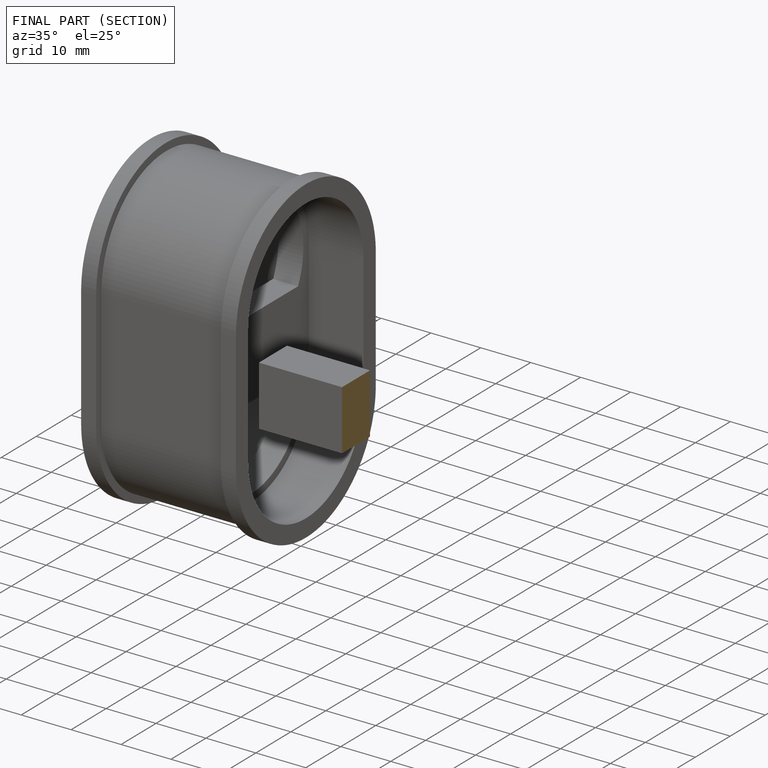
[diagram: finished part — half-section view (interior)]
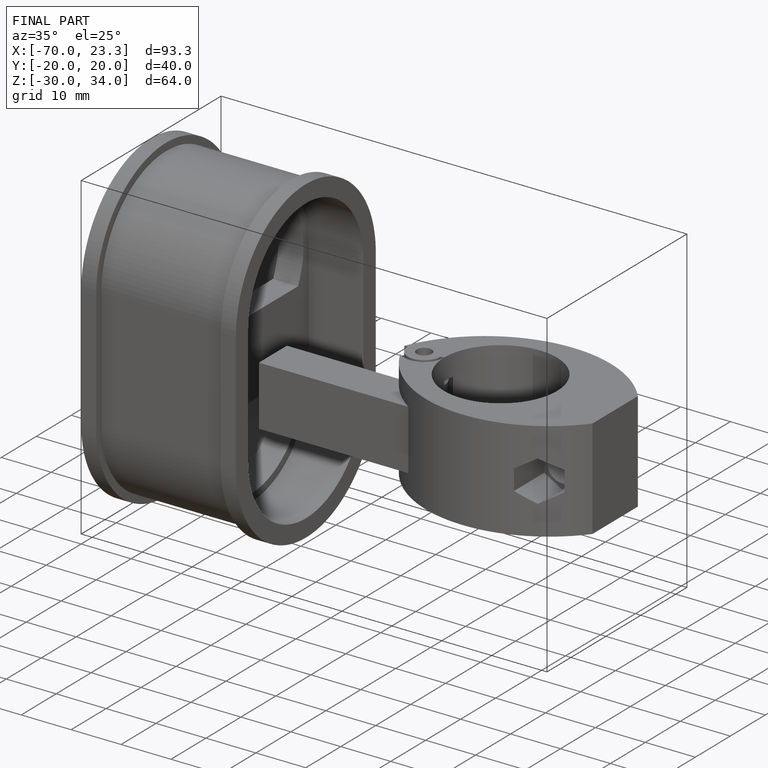
[diagram: finished part — iso view with bounding-box wireframe]
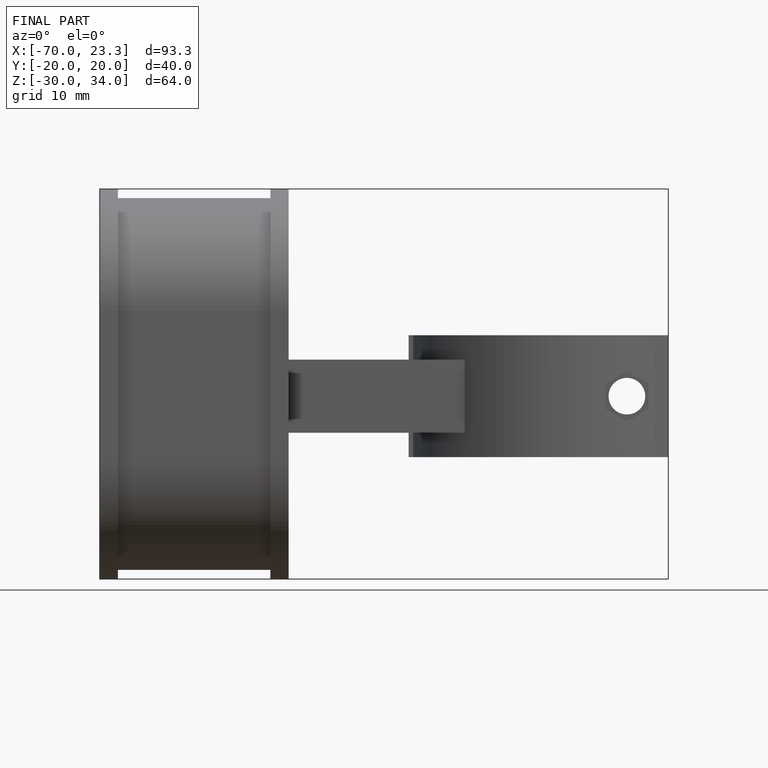
[diagram: finished part — front view with bounding-box wireframe]
